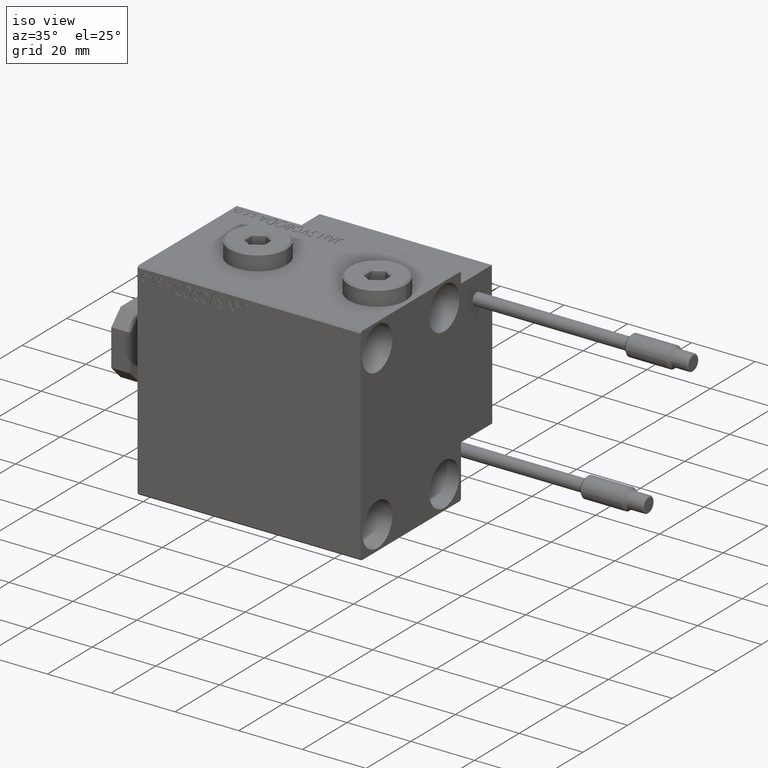
[diagram: clean part render]
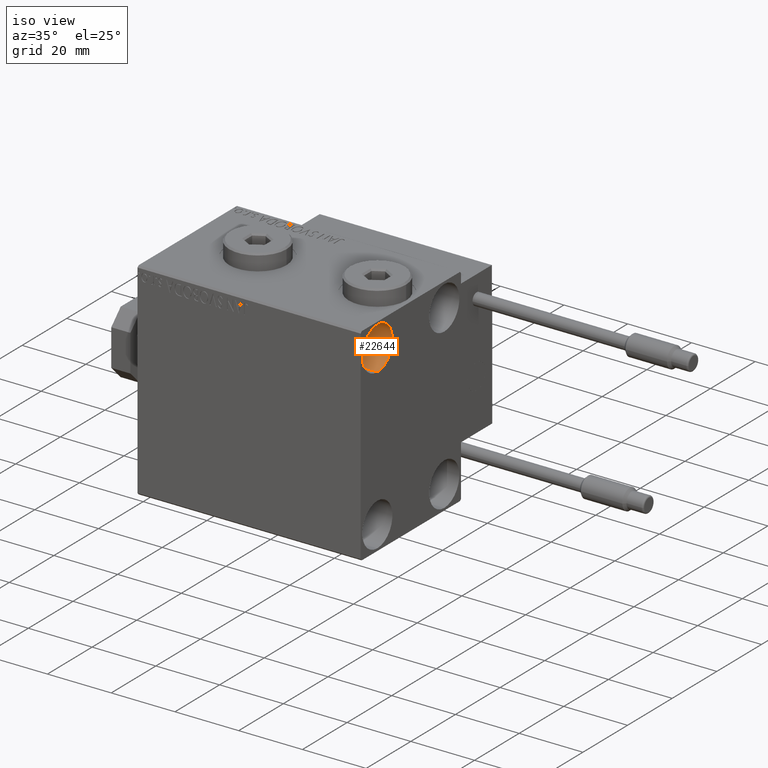
[diagram: same view with one face highlighted and labeled with its STEP entity id]
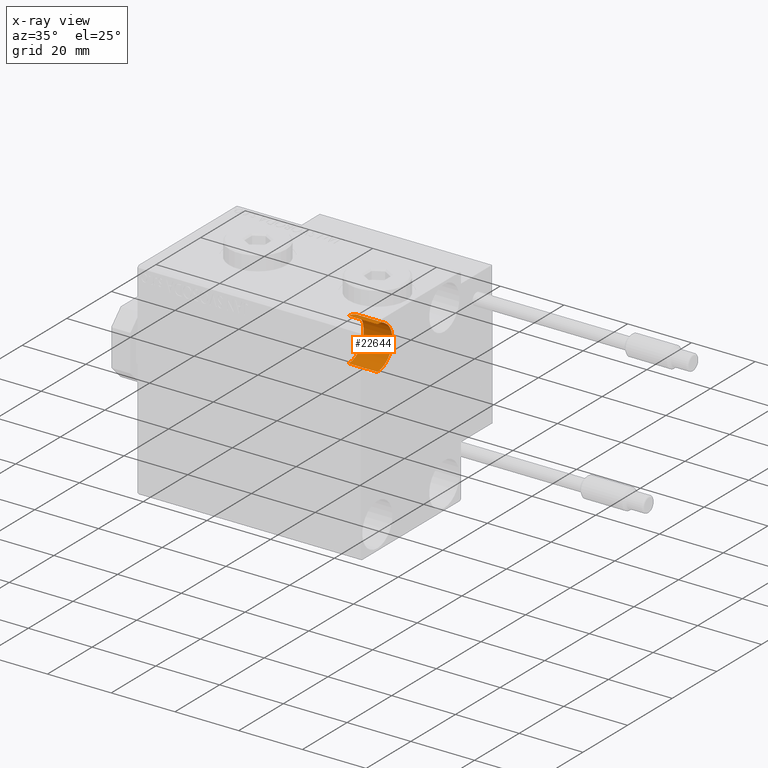
[diagram: x-ray of the same camera — body ghosted, the highlighted face saturated]
A machine part, iso view. The second image highlights one B-rep face of the part: STEP entity #22644.
The next image is the same camera in x-ray: the body ghosted, the highlighted face saturated — about 0% of this face is hidden behind the body in this view.
In plain terms, the highlighted cylindrical surface (edge-blend (fillet) strip) has radius 6.75 mm, axis along (1, 0, 0).
Its self-contained STEP definition (entity closure, byte-faithful):
#943 = CARTESIAN_POINT ( 'NONE',  ( 70.00000000000000000, -14.99999999999999645, 25.00000000000000000 ) ) ;
#4417 = VECTOR ( 'NONE', #25103, 1000.000000000000000 ) ;
#4458 = DIRECTION ( 'NONE',  ( 0.000000000000000000, 0.000000000000000000, -1.000000000000000000 ) ) ;
#5217 = ORIENTED_EDGE ( 'NONE', *, *, #9118, .F. ) ;
#7270 = AXIS2_PLACEMENT_3D ( 'NONE', #28542, #47949, #4458 ) ;
#8069 = CIRCLE ( 'NONE', #37337, 6.749999999999999112 ) ;
#8119 = DIRECTION ( 'NONE',  ( 1.000000000000000000, -0.000000000000000000, -0.000000000000000000 ) ) ;
#8849 = DIRECTION ( 'NONE',  ( 0.000000000000000000, 0.000000000000000000, 1.000000000000000000 ) ) ;
#9118 = EDGE_CURVE ( 'NONE', #39694, #28700, #44018, .T. ) ;
#9136 = CARTESIAN_POINT ( 'NONE',  ( 61.00000000000000711, -14.99999999999999645, 18.25000000000000355 ) ) ;
#9299 = CIRCLE ( 'NONE', #41080, 6.749999999999999112 ) ;
#11285 = ORIENTED_EDGE ( 'NONE', *, *, #21816, .F. ) ;
#13746 = ORIENTED_EDGE ( 'NONE', *, *, #46060, .T. ) ;
#21816 = EDGE_CURVE ( 'NONE', #28700, #50833, #8069, .T. ) ;
#22492 = CARTESIAN_POINT ( 'NONE',  ( 61.00000000000000711, -14.99999999999999645, 25.00000000000000000 ) ) ;
#22644 = ADVANCED_FACE ( 'NONE', ( #42201 ), #40350, .F. ) ;
#22780 = ORIENTED_EDGE ( 'NONE', *, *, #50976, .T. ) ;
#23725 = DIRECTION ( 'NONE',  ( 0.000000000000000000, 0.000000000000000000, 1.000000000000000000 ) ) ;
#25103 = DIRECTION ( 'NONE',  ( 1.000000000000000000, -0.000000000000000000, -0.000000000000000000 ) ) ;
#28542 = CARTESIAN_POINT ( 'NONE',  ( 61.00000000000000711, -14.99999999999999645, 25.00000000000000000 ) ) ;
#28700 = VERTEX_POINT ( 'NONE', #34290 ) ;
#30388 = VECTOR ( 'NONE', #8119, 1000.000000000000000 ) ;
#33499 = CARTESIAN_POINT ( 'NONE',  ( 61.00000000000000711, -14.99999999999999645, 18.25000000000000355 ) ) ;
#34290 = CARTESIAN_POINT ( 'NONE',  ( 70.00000000000000000, -14.99999999999999645, 31.75000000000000000 ) ) ;
#34493 = VERTEX_POINT ( 'NONE', #33499 ) ;
#34525 = DIRECTION ( 'NONE',  ( -1.000000000000000000, -0.000000000000000000, -0.000000000000000000 ) ) ;
#37337 = AXIS2_PLACEMENT_3D ( 'NONE', #943, #44471, #8849 ) ;
#39256 = CARTESIAN_POINT ( 'NONE',  ( 70.00000000000000000, -14.99999999999999645, 18.25000000000000355 ) ) ;
#39694 = VERTEX_POINT ( 'NONE', #44660 ) ;
#40350 = CYLINDRICAL_SURFACE ( 'NONE', #7270, 6.749999999999999112 ) ;
#41080 = AXIS2_PLACEMENT_3D ( 'NONE', #22492, #34525, #23725 ) ;
#42201 = FACE_OUTER_BOUND ( 'NONE', #49799, .T. ) ;
#43757 = CARTESIAN_POINT ( 'NONE',  ( 61.00000000000000711, -14.99999999999999645, 31.75000000000000000 ) ) ;
#44018 = LINE ( 'NONE', #43757, #30388 ) ;
#44471 = DIRECTION ( 'NONE',  ( -1.000000000000000000, -0.000000000000000000, -0.000000000000000000 ) ) ;
#44660 = CARTESIAN_POINT ( 'NONE',  ( 61.00000000000000711, -14.99999999999999645, 31.75000000000000000 ) ) ;
#46060 = EDGE_CURVE ( 'NONE', #39694, #34493, #9299, .T. ) ;
#47949 = DIRECTION ( 'NONE',  ( 1.000000000000000000, -0.000000000000000000, -0.000000000000000000 ) ) ;
#49457 = LINE ( 'NONE', #9136, #4417 ) ;
#49799 = EDGE_LOOP ( 'NONE', ( #5217, #13746, #22780, #11285 ) ) ;
#50833 = VERTEX_POINT ( 'NONE', #39256 ) ;
#50976 = EDGE_CURVE ( 'NONE', #34493, #50833, #49457, .T. ) ;